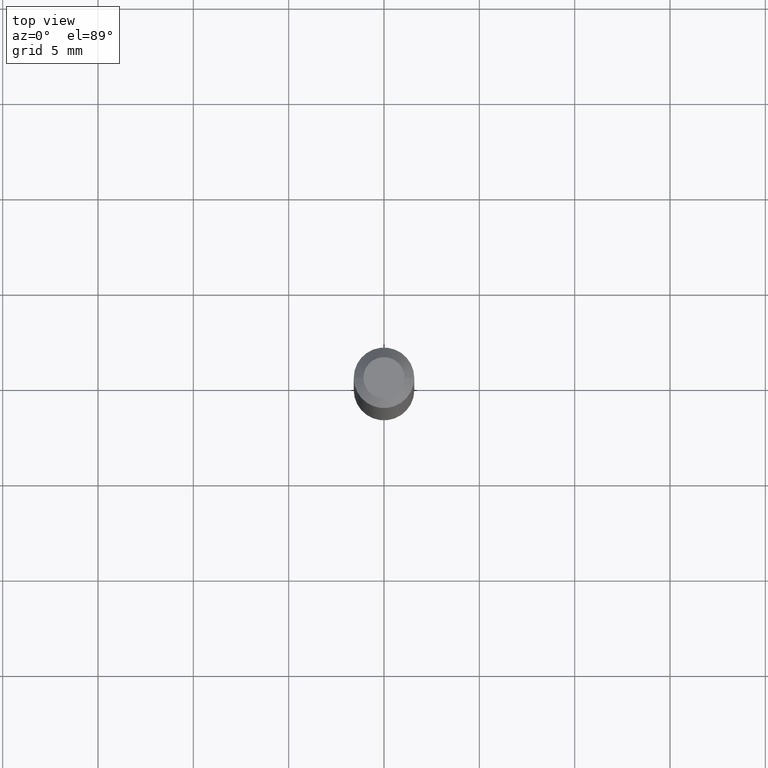
[diagram: clean part render]
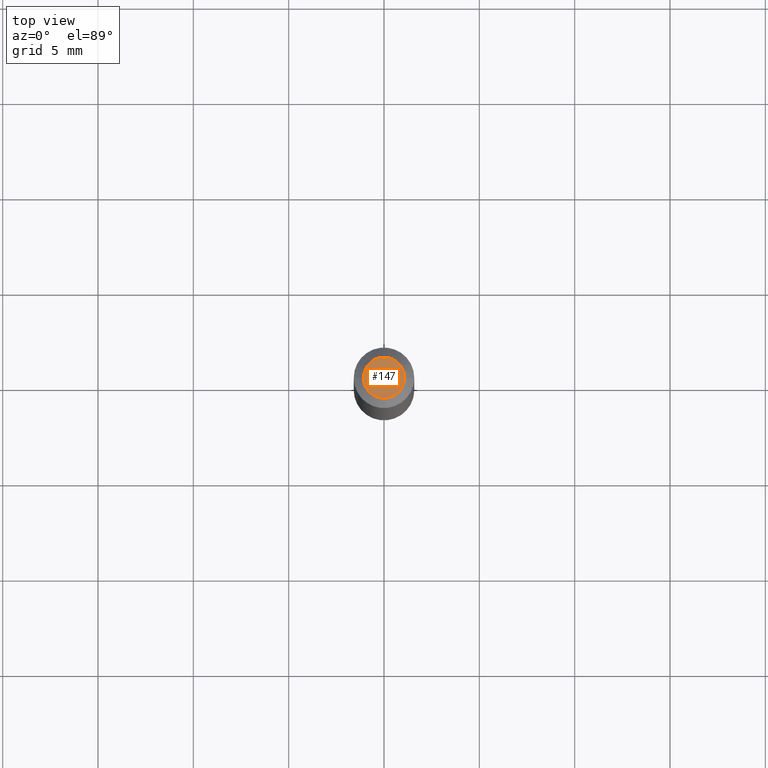
[diagram: same view with one face highlighted and labeled with its STEP entity id]
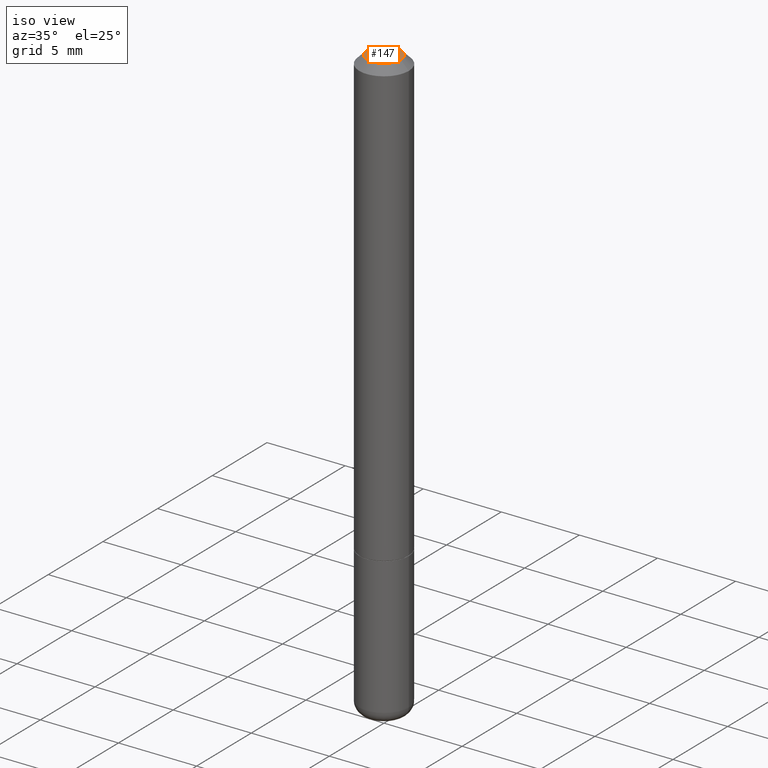
[diagram: same view with one face highlighted and labeled with its STEP entity id]
A machine part, top view. The second image highlights one B-rep face of the part: STEP entity #147.
A second angle (iso view) of the same face is appended — the face is thin or edge-on in the first view.
In plain terms, the highlighted planar face has unit normal (0, -0, -1).
Its self-contained STEP definition (entity closure, byte-faithful):
#42 = DIRECTION ( 'NONE',  ( -2.445468806185136597E-29, 3.491481338843145583E-15, 1.000000000000000000 ) ) ;
#70 = CARTESIAN_POINT ( 'NONE',  ( -0.04250000000000002387, 3.316907271900975110E-16, -2.561107494060466786E-17 ) ) ;
#86 = PLANE ( 'NONE',  #418 ) ;
#109 = ORIENTED_EDGE ( 'NONE', *, *, #390, .T. ) ;
#113 = DIRECTION ( 'NONE',  ( 1.000000000000000000, -6.982962677686267499E-15, 4.879498284297441184E-29 ) ) ;
#141 = EDGE_LOOP ( 'NONE', ( #177, #109 ) ) ;
#147 = ADVANCED_FACE ( 'NONE', ( #318 ), #86, .F. ) ;
#157 = AXIS2_PLACEMENT_3D ( 'NONE', #228, #360, #113 ) ;
#163 = AXIS2_PLACEMENT_3D ( 'NONE', #206, #42, #407 ) ;
#177 = ORIENTED_EDGE ( 'NONE', *, *, #352, .T. ) ;
#203 = VERTEX_POINT ( 'NONE', #70 ) ;
#206 = CARTESIAN_POINT ( 'NONE',  ( 6.263108486011318528E-46, -8.942059022282683748E-32, -2.561107494060246767E-17 ) ) ;
#213 = CARTESIAN_POINT ( 'NONE',  ( 2.967759138016664535E-16, 0.04250000000000002387, -1.611934943711350245E-16 ) ) ;
#228 = CARTESIAN_POINT ( 'NONE',  ( 6.263108486011318528E-46, -8.942059022282683748E-32, -2.561107494060246767E-17 ) ) ;
#257 = DIRECTION ( 'NONE',  ( 2.438088387897960049E-29, -3.491481338843145188E-15, -1.000000000000000000 ) ) ;
#283 = DIRECTION ( 'NONE',  ( -1.000000000000000000, 6.982962677686265922E-15, -4.876176775795935793E-29 ) ) ;
#318 = FACE_OUTER_BOUND ( 'NONE', #141, .T. ) ;
#352 = EDGE_CURVE ( 'NONE', #203, #404, #386, .T. ) ;
#355 = CIRCLE ( 'NONE', #163, 0.04250000000000002387 ) ;
#360 = DIRECTION ( 'NONE',  ( -2.445468806185136597E-29, 3.491481338843145583E-15, 1.000000000000000000 ) ) ;
#368 = CARTESIAN_POINT ( 'NONE',  ( 0.04250000000000002387, -3.950909582714371883E-16, -2.561107494060004870E-17 ) ) ;
#386 = CIRCLE ( 'NONE', #157, 0.04250000000000002387 ) ;
#390 = EDGE_CURVE ( 'NONE', #404, #203, #355, .T. ) ;
#404 = VERTEX_POINT ( 'NONE', #368 ) ;
#407 = DIRECTION ( 'NONE',  ( 1.000000000000000000, -6.982962677686267499E-15, 4.879498284297441184E-29 ) ) ;
#418 = AXIS2_PLACEMENT_3D ( 'NONE', #213, #257, #283 ) ;